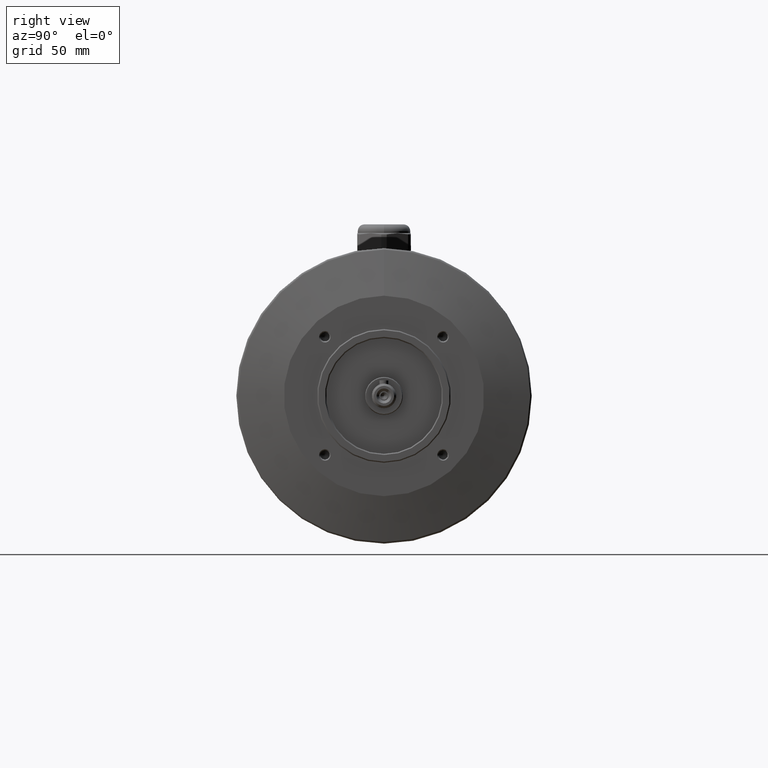
[diagram: clean part render]
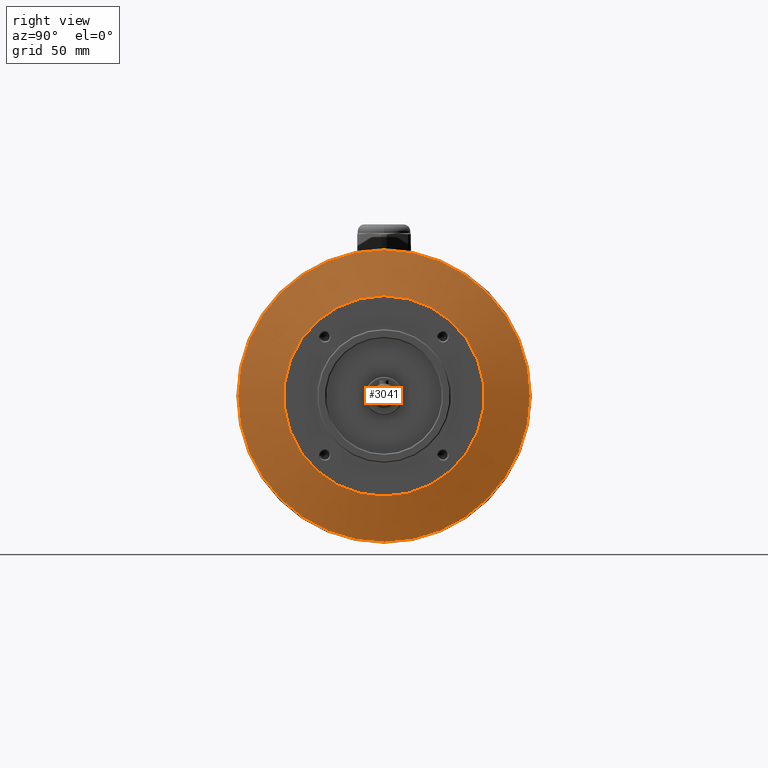
[diagram: same view with one face highlighted and labeled with its STEP entity id]
A machine part, right view. The second image highlights one B-rep face of the part: STEP entity #3041.
In plain terms, the highlighted conical surface has half-angle 76 deg.
Its self-contained STEP definition (entity closure, byte-faithful):
#35=CONICAL_SURFACE('',#3232,65.5419218955997,1.32645023151569);
#180=CIRCLE('',#3231,65.5419218955997);
#181=CIRCLE('',#3233,45.);
#322=ORIENTED_EDGE('',*,*,#820,.T.);
#323=ORIENTED_EDGE('',*,*,#819,.F.);
#819=EDGE_CURVE('',#1070,#1070,#180,.T.);
#820=EDGE_CURVE('',#1071,#1071,#181,.T.);
#1070=VERTEX_POINT('',#4237);
#1071=VERTEX_POINT('',#4240);
#1485=EDGE_LOOP('',(#322));
#1486=EDGE_LOOP('',(#323));
#1722=FACE_BOUND('',#1485,.T.);
#1723=FACE_BOUND('',#1486,.T.);
#3041=ADVANCED_FACE('',(#1722,#1723),#35,.T.);
#3231=AXIS2_PLACEMENT_3D('',#4236,#3574,#3575);
#3232=AXIS2_PLACEMENT_3D('',#4238,#3576,#3577);
#3233=AXIS2_PLACEMENT_3D('',#4239,#3578,#3579);
#3574=DIRECTION('',(-1.,0.,0.));
#3575=DIRECTION('',(0.,0.,1.));
#3576=DIRECTION('',(-1.,0.,0.));
#3577=DIRECTION('',(0.,0.,1.));
#3578=DIRECTION('',(-1.,0.,0.));
#3579=DIRECTION('',(0.,0.,1.));
#4236=CARTESIAN_POINT('',(-5.1216763607905,0.,0.));
#4237=CARTESIAN_POINT('',(-5.1216763607905,0.,65.5419218955997));
#4238=CARTESIAN_POINT('',(-5.1216763607905,0.,0.));
#4239=CARTESIAN_POINT('',(-2.77555756156289E-14,0.,0.));
#4240=CARTESIAN_POINT('',(-2.77555756156289E-14,0.,45.));